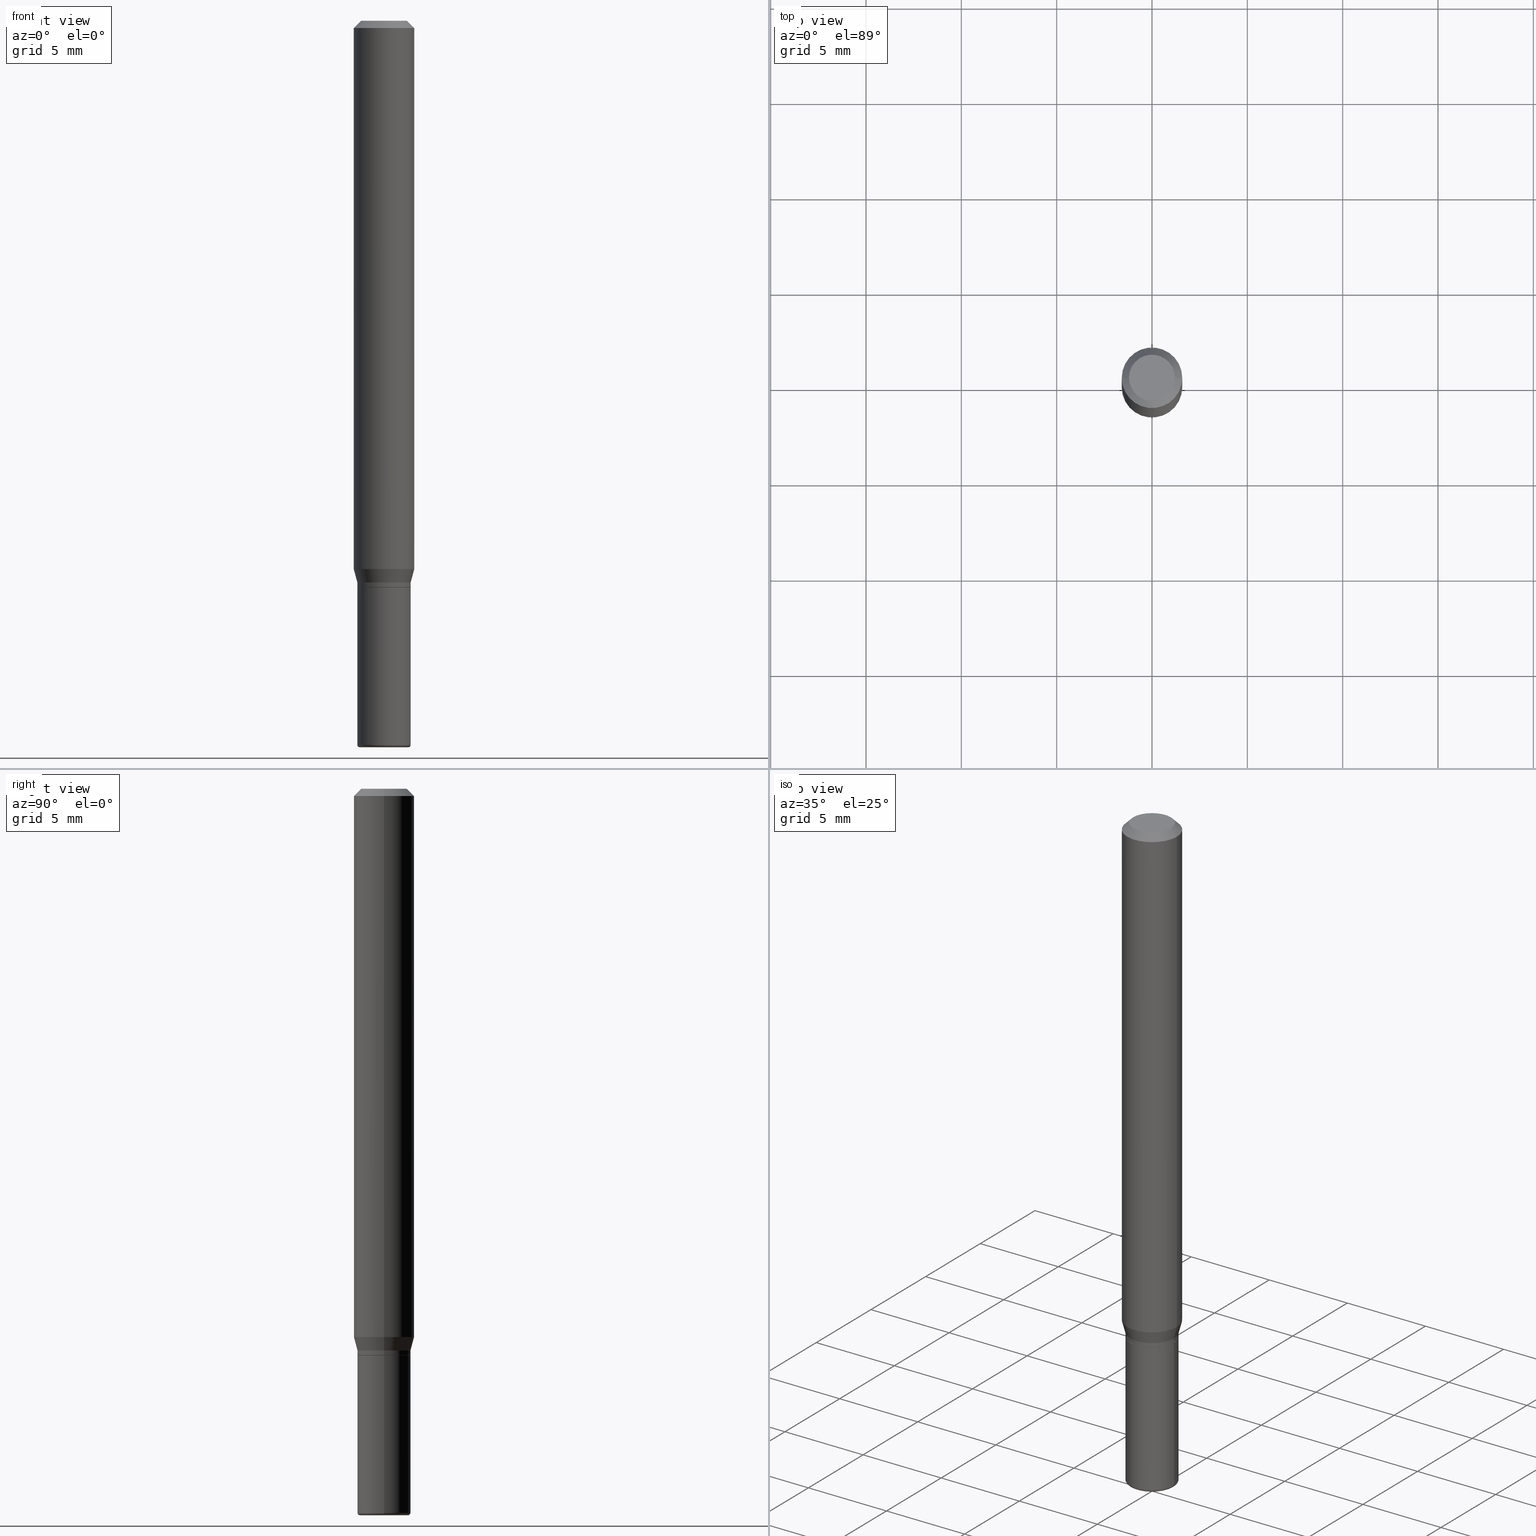
[diagram: canonical four-view strip — front | top / right | iso, engineering-drawing reading convention]
A machine part, canonical four-view strip (front | top / right | iso — engineering-drawing reading convention). The complete STEP part file that produces these views, byte-faithful:
ISO-10303-21;
HEADER;
FILE_DESCRIPTION (( 'STEP AP203' ),
    '1' );
FILE_NAME ('09097.STEP',
    '2024-02-29T22:05:54',
    ( '' ),
    ( '' ),
    'SwSTEP 2.0',
    'SolidWorks 2023',
    '' );
FILE_SCHEMA (( 'CONFIG_CONTROL_DESIGN' ));
ENDSEC;

DATA;
#1 = CONICAL_SURFACE ( 'NONE', #478, 0.05450000000000009698, 0.7853981633972775267 ) ;
#2 = VERTEX_POINT ( 'NONE', #15 ) ;
#3 = CARTESIAN_POINT ( 'NONE',  ( -0.05500000000000009742, 3.907985046680557945E-16, -2.705414299640202916E-30 ) ) ;
#4 =( CONVERSION_BASED_UNIT ( 'INCH', #299 ) LENGTH_UNIT ( ) NAMED_UNIT ( #26 ) );
#5 = ORIENTED_EDGE ( 'NONE', *, *, #184, .F. ) ;
#6 = CALENDAR_DATE ( 2024, 29, 2 ) ;
#7 = ORIENTED_EDGE ( 'NONE', *, *, #58, .T. ) ;
#8 = DIRECTION ( 'NONE',  ( -2.445468806185136597E-29, 3.491481338843145583E-15, 1.000000000000000000 ) ) ;
#9 = PERSON_AND_ORGANIZATION_ROLE ( 'design_owner' ) ;
#10 = ORIENTED_EDGE ( 'NONE', *, *, #86, .T. ) ;
#11 =( GEOMETRIC_REPRESENTATION_CONTEXT ( 3 ) GLOBAL_UNCERTAINTY_ASSIGNED_CONTEXT ( ( #160 ) ) GLOBAL_UNIT_ASSIGNED_CONTEXT ( ( #4, #457, #89 ) ) REPRESENTATION_CONTEXT ( 'NONE', 'WORKASPACE' ) );
#12 = ORIENTED_EDGE ( 'NONE', *, *, #364, .T. ) ;
#13 = EDGE_CURVE ( 'NONE', #53, #506, #134, .T. ) ;
#14 = PERSON_AND_ORGANIZATION ( #393, #59 ) ;
#15 = CARTESIAN_POINT ( 'NONE',  ( -0.05500000000000006967, -3.583810549235586733E-15, -1.160000000000000364 ) ) ;
#16 = EDGE_LOOP ( 'NONE', ( #214, #193, #60, #217 ) ) ;
#17 = MANIFOLD_SOLID_BREP ( 'Body-Move/Copy2[1]', #155 ) ;
#18 = AXIS2_PLACEMENT_3D ( 'NONE', #512, #472, #76 ) ;
#19 = AXIS2_PLACEMENT_3D ( 'NONE', #504, #154, #115 ) ;
#20 = ADVANCED_FACE ( 'NONE', ( #424 ), #142, .F. ) ;
#21 = ORIENTED_EDGE ( 'NONE', *, *, #505, .T. ) ;
#22 = ORIENTED_EDGE ( 'NONE', *, *, #178, .T. ) ;
#23 = SHAPE_DEFINITION_REPRESENTATION ( #240, #25 ) ;
#24 = ORIENTED_EDGE ( 'NONE', *, *, #177, .T. ) ;
#25 = ADVANCED_BREP_SHAPE_REPRESENTATION ( '09097', ( #17, #347, #195 ), #11 ) ;
#26 = DIMENSIONAL_EXPONENTS ( 1.000000000000000000, 0.000000000000000000, 0.000000000000000000, 0.000000000000000000, 0.000000000000000000, 0.000000000000000000, 0.000000000000000000 ) ;
#27 = CARTESIAN_POINT ( 'NONE',  ( -0.06250000000000000000, 3.840629472727455270E-16, -0.01499999999999970281 ) ) ;
#28 = DIRECTION ( 'NONE',  ( -1.000000000000000000, 6.982962677686265922E-15, -4.876176775795935793E-29 ) ) ;
#29 = CONICAL_SURFACE ( 'NONE', #267, 0.06250000000000000000, 0.7853981633974488341 ) ;
#30 = AXIS2_PLACEMENT_3D ( 'NONE', #370, #206, #378 ) ;
#31 = ORIENTED_EDGE ( 'NONE', *, *, #135, .F. ) ;
#32 = ADVANCED_FACE ( 'NONE', ( #79 ), #29, .T. ) ;
#33 = CARTESIAN_POINT ( 'NONE',  ( 3.655975865246779122E-29, -5.219764601570503141E-15, -1.495000000000000107 ) ) ;
#34 = FACE_OUTER_BOUND ( 'NONE', #181, .T. ) ;
#35 = CARTESIAN_POINT ( 'NONE',  ( 3.316907271900976589E-16, 0.04750000000000000749, -2.925296391183627249E-17 ) ) ;
#36 = VERTEX_POINT ( 'NONE', #37 ) ;
#37 = CARTESIAN_POINT ( 'NONE',  ( 0.05500000000000018069, -5.603827548843249703E-15, -1.495000000000000107 ) ) ;
#38 = FACE_OUTER_BOUND ( 'NONE', #16, .T. ) ;
#39 = CIRCLE ( 'NONE', #149, 0.05500000000000009742 ) ;
#40 = ADVANCED_FACE ( 'NONE', ( #43 ), #271, .T. ) ;
#41 = AXIS2_PLACEMENT_3D ( 'NONE', #321, #474, #279 ) ;
#42 = DIRECTION ( 'NONE',  ( 1.000000000000000000, -6.982962677686270655E-15, 0.000000000000000000 ) ) ;
#43 = FACE_OUTER_BOUND ( 'NONE', #153, .T. ) ;
#44 = LINE ( 'NONE', #398, #186 ) ;
#45 = CARTESIAN_POINT ( 'NONE',  ( -0.04999999999999999584, -4.855458368643558124E-15, -1.500000000000000444 ) ) ;
#46 = CARTESIAN_POINT ( 'NONE',  ( 2.861198503236610065E-29, -4.085033166446480067E-15, -1.170000000000000151 ) ) ;
#47 = LINE ( 'NONE', #125, #413 ) ;
#48 = DIRECTION ( 'NONE',  ( -2.445468806185136597E-29, 3.491481338843145583E-15, 1.000000000000000000 ) ) ;
#49 = APPROVAL_ROLE ( '' ) ;
#50 = ORIENTED_EDGE ( 'NONE', *, *, #262, .T. ) ;
#51 = AXIS2_PLACEMENT_3D ( 'NONE', #80, #368, #322 ) ;
#52 = DIRECTION ( 'NONE',  ( 1.000000000000000000, -6.982962677686262766E-15, 0.000000000000000000 ) ) ;
#53 = VERTEX_POINT ( 'NONE', #188 ) ;
#54 = EDGE_CURVE ( 'NONE', #369, #265, #375, .T. ) ;
#55 = PERSON_AND_ORGANIZATION ( #393, #59 ) ;
#56 = CARTESIAN_POINT ( 'NONE',  ( 3.655975865246779122E-29, -5.219764601570503141E-15, -1.495000000000000107 ) ) ;
#57 = EDGE_LOOP ( 'NONE', ( #24, #12, #274, #216 ) ) ;
#58 = EDGE_CURVE ( 'NONE', #2, #345, #327, .T. ) ;
#59 = ORGANIZATION ( 'UNSPECIFIED', 'UNSPECIFIED', '' ) ;
#60 = ORIENTED_EDGE ( 'NONE', *, *, #259, .F. ) ;
#61 = CARTESIAN_POINT ( 'NONE',  ( 0.05500000000000007661, -3.840629472727452311E-16, 2.681897226687768680E-30 ) ) ;
#62 = PERSON_AND_ORGANIZATION_ROLE ( 'creator' ) ;
#63 = CALENDAR_DATE ( 2024, 29, 2 ) ;
#64 = EDGE_CURVE ( 'NONE', #414, #446, #39, .T. ) ;
#65 = ORIENTED_EDGE ( 'NONE', *, *, #13, .T. ) ;
#66 = VECTOR ( 'NONE', #288, 39.37007874015748143 ) ;
#67 = AXIS2_PLACEMENT_3D ( 'NONE', #328, #346, #202 ) ;
#68 = DIRECTION ( 'NONE',  ( 1.000000000000000000, -6.982962677686262766E-15, 0.000000000000000000 ) ) ;
#69 = COORDINATED_UNIVERSAL_TIME_OFFSET ( 5, 0, .BEHIND. ) ;
#70 = CARTESIAN_POINT ( 'NONE',  ( -0.05450000000000009698, -3.695138148283113527E-15, -1.170000000000000151 ) ) ;
#71 = PLANE ( 'NONE',  #295 ) ;
#72 = APPROVAL ( #210, 'UNSPECIFIED' ) ;
#73 = CARTESIAN_POINT ( 'NONE',  ( 3.668203209277632395E-31, -5.237222008264614861E-17, -0.01499999999999970281 ) ) ;
#74 = ORIENTED_EDGE ( 'NONE', *, *, #54, .F. ) ;
#75 = DIRECTION ( 'NONE',  ( 1.000000000000000000, -6.982962677686262766E-15, 0.000000000000000000 ) ) ;
#76 = DIRECTION ( 'NONE',  ( 1.000000000000000000, -6.982962677686266711E-15, 4.852736867747365086E-29 ) ) ;
#77 = FACE_OUTER_BOUND ( 'NONE', #175, .T. ) ;
#78 = APPROVAL ( #162, 'UNSPECIFIED' ) ;
#79 = FACE_OUTER_BOUND ( 'NONE', #473, .T. ) ;
#80 = CARTESIAN_POINT ( 'NONE',  ( 0.000000000000000000, 0.000000000000000000, 0.000000000000000000 ) ) ;
#81 = DIRECTION ( 'NONE',  ( -2.445468806185136877E-29, 3.491481338843145188E-15, 1.000000000000000000 ) ) ;
#82 = AXIS2_PLACEMENT_3D ( 'NONE', #254, #488, #459 ) ;
#83 = CC_DESIGN_APPROVAL ( #78, ( #351 ) ) ;
#84 = DIRECTION ( 'NONE',  ( -2.445468806185136877E-29, 3.491481338843145188E-15, 1.000000000000000000 ) ) ;
#85 = LINE ( 'NONE', #3, #469 ) ;
#86 = EDGE_CURVE ( 'NONE', #119, #237, #91, .T. ) ;
#87 = ORIENTED_EDGE ( 'NONE', *, *, #266, .F. ) ;
#88 = EDGE_CURVE ( 'NONE', #369, #237, #228, .T. ) ;
#89 =( NAMED_UNIT ( * ) SI_UNIT ( $, .STERADIAN. ) SOLID_ANGLE_UNIT ( ) );
#90 = ORIENTED_EDGE ( 'NONE', *, *, #232, .T. ) ;
#91 = CIRCLE ( 'NONE', #339, 0.06250000000000000000 ) ;
#92 = LOCAL_TIME ( 17, 5, 54.00000000000000000, #344 ) ;
#93 = CARTESIAN_POINT ( 'NONE',  ( 0.05450000000000009698, -4.465604632380382834E-15, -1.170000000000000151 ) ) ;
#94 = FACE_OUTER_BOUND ( 'NONE', #394, .T. ) ;
#95 = APPLICATION_PROTOCOL_DEFINITION ( 'international standard', 'config_control_design', 1994, #261 ) ;
#96 = LOCAL_TIME ( 17, 5, 54.00000000000000000, #391 ) ;
#97 = VERTEX_POINT ( 'NONE', #93 ) ;
#98 = PERSON_AND_ORGANIZATION ( #393, #59 ) ;
#99 = EDGE_LOOP ( 'NONE', ( #137, #218, #31, #145 ) ) ;
#100 = ORIENTED_EDGE ( 'NONE', *, *, #358, .F. ) ;
#101 = CARTESIAN_POINT ( 'NONE',  ( -0.05500000000000018069, -4.261600379340434577E-15, -1.495000000000000107 ) ) ;
#102 = CC_DESIGN_DATE_AND_TIME_ASSIGNMENT ( #350, #428, ( #285 ) ) ;
#103 = FACE_OUTER_BOUND ( 'NONE', #349, .T. ) ;
#104 = DIRECTION ( 'NONE',  ( -2.445468806185136597E-29, 3.491481338843145583E-15, 1.000000000000000000 ) ) ;
#105 = CONICAL_SURFACE ( 'NONE', #205, 0.05450000000000009698, 0.7853981633972775267 ) ;
#106 = ORIENTED_EDGE ( 'NONE', *, *, #13, .F. ) ;
#107 = AXIS2_PLACEMENT_3D ( 'NONE', #485, #292, #454 ) ;
#108 = AXIS2_PLACEMENT_3D ( 'NONE', #332, #166, #482 ) ;
#109 = CARTESIAN_POINT ( 'NONE',  ( 2.859975768833516703E-29, -4.083287425777058564E-15, -1.169499999999999984 ) ) ;
#110 = CC_DESIGN_PERSON_AND_ORGANIZATION_ASSIGNMENT ( #489, #62, ( #340 ) ) ;
#111 = ORIENTED_EDGE ( 'NONE', *, *, #462, .T. ) ;
#112 = DIRECTION ( 'NONE',  ( -2.445468806185136597E-29, 3.491481338843145583E-15, 1.000000000000000000 ) ) ;
#113 = DIRECTION ( 'NONE',  ( -0.7071067811864267805, 7.493145998869918709E-15, 0.7071067811866682540 ) ) ;
#114 = ORIENTED_EDGE ( 'NONE', *, *, #132, .T. ) ;
#115 = DIRECTION ( 'NONE',  ( 1.000000000000000000, -6.982962677686267499E-15, 4.876176775795936353E-29 ) ) ;
#116 = AXIS2_PLACEMENT_3D ( 'NONE', #304, #499, #144 ) ;
#117 = AXIS2_PLACEMENT_3D ( 'NONE', #367, #513, #75 ) ;
#118 = EDGE_CURVE ( 'NONE', #313, #201, #450, .T. ) ;
#119 = VERTEX_POINT ( 'NONE', #245 ) ;
#120 = DIRECTION ( 'NONE',  ( -2.445468806185136597E-29, 3.491481338843145583E-15, 1.000000000000000000 ) ) ;
#121 = CARTESIAN_POINT ( 'NONE',  ( 2.836743815174759641E-29, -4.050118353058050785E-15, -1.160000000000000364 ) ) ;
#122 = EDGE_LOOP ( 'NONE', ( #466, #203, #509, #470 ) ) ;
#123 = CARTESIAN_POINT ( 'NONE',  ( -0.05500000000000009742, -3.692488921109003115E-15, -1.169499999999999984 ) ) ;
#124 = CARTESIAN_POINT ( 'NONE',  ( 0.05500000000000009742, -3.840629472727453298E-16, 2.681897226687769380E-30 ) ) ;
#125 = CARTESIAN_POINT ( 'NONE',  ( 0.05450000000000009698, -4.465604632380382834E-15, -1.170000000000000151 ) ) ;
#126 = LOCAL_TIME ( 17, 5, 54.00000000000000000, #69 ) ;
#127 = LINE ( 'NONE', #491, #284 ) ;
#128 = CC_DESIGN_APPROVAL ( #343, ( #285 ) ) ;
#129 = DIRECTION ( 'NONE',  ( 1.000000000000000000, -6.982962677686276177E-15, 0.000000000000000000 ) ) ;
#130 = DATE_AND_TIME ( #374, #486 ) ;
#131 = ADVANCED_FACE ( 'NONE', ( #331 ), #380, .T. ) ;
#132 = EDGE_CURVE ( 'NONE', #53, #237, #196, .T. ) ;
#133 = PLANE ( 'NONE',  #396 ) ;
#134 = CIRCLE ( 'NONE', #395, 0.06250000000000000000 ) ;
#135 = EDGE_CURVE ( 'NONE', #345, #2, #399, .T. ) ;
#136 = APPLICATION_PROTOCOL_DEFINITION ( 'international standard', 'config_control_design', 1994, #236 ) ;
#137 = ORIENTED_EDGE ( 'NONE', *, *, #330, .T. ) ;
#138 = DATE_AND_TIME ( #213, #92 ) ;
#139 = DIRECTION ( 'NONE',  ( 1.000000000000000000, -6.982962677686274599E-15, 0.000000000000000000 ) ) ;
#140 = EDGE_CURVE ( 'NONE', #345, #506, #441, .T. ) ;
#141 = CIRCLE ( 'NONE', #185, 0.04999999999999999584 ) ;
#142 = PLANE ( 'NONE',  #215 ) ;
#143 = AXIS2_PLACEMENT_3D ( 'NONE', #360, #316, #436 ) ;
#144 = DIRECTION ( 'NONE',  ( 1.000000000000000000, -6.982962677686265922E-15, 4.876176775795935793E-29 ) ) ;
#145 = ORIENTED_EDGE ( 'NONE', *, *, #199, .F. ) ;
#146 = DIRECTION ( 'NONE',  ( -2.445468806185136597E-29, 3.491481338843145583E-15, 1.000000000000000000 ) ) ;
#147 = APPROVAL_STATUS ( 'not_yet_approved' ) ;
#148 = PERSON_AND_ORGANIZATION ( #393, #59 ) ;
#149 = AXIS2_PLACEMENT_3D ( 'NONE', #109, #112, #269 ) ;
#150 = CARTESIAN_POINT ( 'NONE',  ( -0.05500000000000000028, -4.261600379340436155E-15, -1.170000000000000151 ) ) ;
#151 = DIRECTION ( 'NONE',  ( -1.000000000000000000, 7.105427357601061812E-15, 0.000000000000000000 ) ) ;
#152 = EDGE_CURVE ( 'NONE', #484, #36, #294, .T. ) ;
#153 = EDGE_LOOP ( 'NONE', ( #385, #487, #10, #171 ) ) ;
#154 = DIRECTION ( 'NONE',  ( -2.445468806185136597E-29, 3.491481338843145583E-15, 1.000000000000000000 ) ) ;
#155 = CLOSED_SHELL ( 'NONE', ( #334, #444, #20, #302, #476, #226 ) ) ;
#156 = ORIENTED_EDGE ( 'NONE', *, *, #88, .T. ) ;
#157 = CARTESIAN_POINT ( 'NONE',  ( -0.05500000000000007661, 3.907985046680556465E-16, -2.705414299640202216E-30 ) ) ;
#158 = AXIS2_PLACEMENT_3D ( 'NONE', #33, #229, #189 ) ;
#159 = CYLINDRICAL_SURFACE ( 'NONE', #41, 0.05500000000000009742 ) ;
#160 = UNCERTAINTY_MEASURE_WITH_UNIT (LENGTH_MEASURE( 1.000000000000000082E-05 ), #4, 'distance_accuracy_value', 'NONE');
#161 = DIRECTION ( 'NONE',  ( 1.000000000000000000, -6.982962677686275388E-15, 0.000000000000000000 ) ) ;
#162 = APPROVAL_STATUS ( 'not_yet_approved' ) ;
#163 = CC_DESIGN_PERSON_AND_ORGANIZATION_ASSIGNMENT ( #55, #247, ( #351 ) ) ;
#164 = FACE_OUTER_BOUND ( 'NONE', #390, .T. ) ;
#165 = ORIENTED_EDGE ( 'NONE', *, *, #357, .F. ) ;
#166 = DIRECTION ( 'NONE',  ( -2.445468806185136597E-29, 3.491481338843145583E-15, 1.000000000000000000 ) ) ;
#167 = PERSON_AND_ORGANIZATION ( #393, #59 ) ;
#168 = FACE_OUTER_BOUND ( 'NONE', #122, .T. ) ;
#169 = EDGE_CURVE ( 'NONE', #265, #119, #127, .T. ) ;
#170 = APPROVAL_DATE_TIME ( #130, #78 ) ;
#171 = ORIENTED_EDGE ( 'NONE', *, *, #88, .F. ) ;
#172 = DIRECTION ( 'NONE',  ( -2.445468806185136597E-29, 3.491481338843145583E-15, 1.000000000000000000 ) ) ;
#173 = CC_DESIGN_APPROVAL ( #72, ( #340 ) ) ;
#174 = APPROVAL_DATE_TIME ( #417, #72 ) ;
#175 = EDGE_LOOP ( 'NONE', ( #326, #301, #87, #312 ) ) ;
#176 = DIRECTION ( 'NONE',  ( -2.445468806185136597E-29, 3.491481338843145583E-15, 1.000000000000000000 ) ) ;
#177 = EDGE_CURVE ( 'NONE', #97, #256, #460, .T. ) ;
#178 = EDGE_CURVE ( 'NONE', #237, #119, #386, .T. ) ;
#179 = APPROVAL_DATE_TIME ( #356, #343 ) ;
#180 = CIRCLE ( 'NONE', #117, 0.05500000000000000028 ) ;
#181 = EDGE_LOOP ( 'NONE', ( #366, #50 ) ) ;
#182 = CARTESIAN_POINT ( 'NONE',  ( 0.05500000000000006967, -4.434181300330795770E-15, -1.160000000000000364 ) ) ;
#183 = CARTESIAN_POINT ( 'NONE',  ( 2.768294211427202327E-29, -3.952390459931242324E-15, -1.132009618943234264 ) ) ;
#184 = EDGE_CURVE ( 'NONE', #201, #313, #141, .T. ) ;
#185 = AXIS2_PLACEMENT_3D ( 'NONE', #348, #172, #403 ) ;
#186 = VECTOR ( 'NONE', #430, 39.37007874015748143 ) ;
#187 = FACE_OUTER_BOUND ( 'NONE', #307, .T. ) ;
#188 = CARTESIAN_POINT ( 'NONE',  ( -0.06250000000000000000, -3.508301250081179708E-15, -1.132009618943234264 ) ) ;
#189 = DIRECTION ( 'NONE',  ( 1.000000000000000000, -6.982962677686274599E-15, 0.000000000000000000 ) ) ;
#190 = DIRECTION ( 'NONE',  ( -2.445468806185136597E-29, 3.491481338843145583E-15, 1.000000000000000000 ) ) ;
#191 = DIRECTION ( 'NONE',  ( 2.438088387897960049E-29, -3.491481338843145188E-15, -1.000000000000000000 ) ) ;
#192 = CARTESIAN_POINT ( 'NONE',  ( 3.668203209277632395E-31, -5.237222008264614861E-17, -0.01499999999999970281 ) ) ;
#193 = ORIENTED_EDGE ( 'NONE', *, *, #357, .T. ) ;
#194 = CARTESIAN_POINT ( 'NONE',  ( -0.04750000000000000749, 3.578768372314221353E-16, 2.731847993664239060E-16 ) ) ;
#195 = AXIS2_PLACEMENT_3D ( 'NONE', #449, #407, #420 ) ;
#196 = LINE ( 'NONE', #475, #223 ) ;
#197 = EDGE_LOOP ( 'NONE', ( #381, #490, #412, #447 ) ) ;
#198 = DIRECTION ( 'NONE',  ( 0.2588190451025209060, 1.565188264969625123E-15, 0.9659258262890682012 ) ) ;
#199 = EDGE_CURVE ( 'NONE', #446, #345, #416, .T. ) ;
#200 = DIRECTION ( 'NONE',  ( -2.445468806185136597E-29, 3.491481338843145583E-15, 1.000000000000000000 ) ) ;
#201 = VERTEX_POINT ( 'NONE', #45 ) ;
#202 = DIRECTION ( 'NONE',  ( 1.000000000000000000, -6.982962677686280121E-15, 0.000000000000000000 ) ) ;
#203 = ORIENTED_EDGE ( 'NONE', *, *, #152, .T. ) ;
#204 = AXIS2_PLACEMENT_3D ( 'NONE', #437, #382, #42 ) ;
#205 = AXIS2_PLACEMENT_3D ( 'NONE', #445, #244, #129 ) ;
#206 = DIRECTION ( 'NONE',  ( -2.445468806185136597E-29, 3.491481338843145583E-15, 1.000000000000000000 ) ) ;
#207 = VERTEX_POINT ( 'NONE', #276 ) ;
#208 = CARTESIAN_POINT ( 'NONE',  ( 0.05500000000000009742, -4.467350373049804337E-15, -1.169499999999999984 ) ) ;
#209 = ADVANCED_FACE ( 'NONE', ( #212 ), #431, .T. ) ;
#210 = APPROVAL_STATUS ( 'not_yet_approved' ) ;
#211 = ORIENTED_EDGE ( 'NONE', *, *, #232, .F. ) ;
#212 = FACE_OUTER_BOUND ( 'NONE', #197, .T. ) ;
#213 = CALENDAR_DATE ( 2024, 29, 2 ) ;
#214 = ORIENTED_EDGE ( 'NONE', *, *, #118, .T. ) ;
#215 = AXIS2_PLACEMENT_3D ( 'NONE', #463, #191, #238 ) ;
#216 = ORIENTED_EDGE ( 'NONE', *, *, #505, .F. ) ;
#217 = ORIENTED_EDGE ( 'NONE', *, *, #462, .F. ) ;
#218 = ORIENTED_EDGE ( 'NONE', *, *, #392, .T. ) ;
#219 = EDGE_CURVE ( 'NONE', #36, #207, #439, .T. ) ;
#220 = CYLINDRICAL_SURFACE ( 'NONE', #51, 0.06250000000000000000 ) ;
#221 = CALENDAR_DATE ( 2024, 29, 2 ) ;
#222 = EDGE_CURVE ( 'NONE', #506, #53, #352, .T. ) ;
#223 = VECTOR ( 'NONE', #249, 39.37007874015748143 ) ;
#224 = CIRCLE ( 'NONE', #67, 0.005000000000000177046 ) ;
#225 = CC_DESIGN_SECURITY_CLASSIFICATION ( #285, ( #340 ) ) ;
#226 = ADVANCED_FACE ( 'NONE', ( #103 ), #419, .F. ) ;
#227 = PERSON_AND_ORGANIZATION ( #393, #59 ) ;
#228 = LINE ( 'NONE', #27, #66 ) ;
#229 = DIRECTION ( 'NONE',  ( -2.445468806185136597E-29, 3.491481338843145583E-15, 1.000000000000000000 ) ) ;
#230 = ORIENTED_EDGE ( 'NONE', *, *, #86, .F. ) ;
#231 = DIRECTION ( 'NONE',  ( 2.438088387897960049E-29, -3.491481338843145188E-15, -1.000000000000000000 ) ) ;
#232 = EDGE_CURVE ( 'NONE', #506, #119, #425, .T. ) ;
#233 = AXIS2_PLACEMENT_3D ( 'NONE', #243, #341, #456 ) ;
#234 = ORIENTED_EDGE ( 'NONE', *, *, #64, .T. ) ;
#235 = FACE_OUTER_BOUND ( 'NONE', #99, .T. ) ;
#236 = APPLICATION_CONTEXT ( 'configuration controlled 3d designs of mechanical parts and assemblies' ) ;
#237 = VERTEX_POINT ( 'NONE', #282 ) ;
#238 = DIRECTION ( 'NONE',  ( -1.000000000000000000, 6.982962677686265922E-15, -4.876176775795935793E-29 ) ) ;
#239 = DIRECTION ( 'NONE',  ( 1.000000000000000000, -6.982962677686270655E-15, 0.000000000000000000 ) ) ;
#240 = PRODUCT_DEFINITION_SHAPE ( 'NONE', 'NONE',  #351 ) ;
#241 = VECTOR ( 'NONE', #198, 39.37007874015748143 ) ;
#242 = CIRCLE ( 'NONE', #317, 0.05450000000000009698 ) ;
#243 = CARTESIAN_POINT ( 'NONE',  ( 2.768294211427202327E-29, -3.952390459931242324E-15, -1.132009618943234264 ) ) ;
#244 = DIRECTION ( 'NONE',  ( -2.445468806185136597E-29, 3.491481338843145583E-15, 1.000000000000000000 ) ) ;
#245 = CARTESIAN_POINT ( 'NONE',  ( 0.06250000000000000000, -4.888073874380378612E-16, -0.01499999999999970281 ) ) ;
#246 = DIRECTION ( 'NONE',  ( 1.000000000000000000, -6.982962677686265922E-15, 4.876176775795935793E-29 ) ) ;
#247 = PERSON_AND_ORGANIZATION_ROLE ( 'creator' ) ;
#248 = VERTEX_POINT ( 'NONE', #150 ) ;
#249 = DIRECTION ( 'NONE',  ( -2.445468806185136877E-29, 3.491481338843145188E-15, 1.000000000000000000 ) ) ;
#250 = CARTESIAN_POINT ( 'NONE',  ( 2.861198503236610065E-29, -4.085033166446480067E-15, -1.170000000000000151 ) ) ;
#251 = ORIENTED_EDGE ( 'NONE', *, *, #64, .F. ) ;
#252 = TOROIDAL_SURFACE ( 'NONE', #377, 0.05000000000000000278, 0.005000000000000177046 ) ;
#253 = MECHANICAL_CONTEXT ( 'NONE', #236, 'mechanical' ) ;
#254 = CARTESIAN_POINT ( 'NONE',  ( 2.861198503236610065E-29, -4.085033166446480067E-15, -1.170000000000000151 ) ) ;
#255 = COORDINATED_UNIVERSAL_TIME_OFFSET ( 5, 0, .BEHIND. ) ;
#256 = VERTEX_POINT ( 'NONE', #70 ) ;
#257 = DIRECTION ( 'NONE',  ( -2.445468806185136877E-29, 3.491481338843145188E-15, 1.000000000000000000 ) ) ;
#258 = CLOSED_SHELL ( 'NONE', ( #433, #361, #40, #502, #209, #387, #270, #32, #384, #319, #291, #131 ) ) ;
#259 = EDGE_CURVE ( 'NONE', #36, #484, #389, .T. ) ;
#260 = FACE_OUTER_BOUND ( 'NONE', #434, .T. ) ;
#261 = APPLICATION_CONTEXT ( 'configuration controlled 3d designs of mechanical parts and assemblies' ) ;
#262 = EDGE_CURVE ( 'NONE', #265, #369, #329, .T. ) ;
#263 = ORIENTED_EDGE ( 'NONE', *, *, #140, .T. ) ;
#264 = APPROVAL_ROLE ( '' ) ;
#265 = VERTEX_POINT ( 'NONE', #448 ) ;
#266 = EDGE_CURVE ( 'NONE', #207, #248, #511, .T. ) ;
#267 = AXIS2_PLACEMENT_3D ( 'NONE', #286, #465, #401 ) ;
#268 = TOROIDAL_SURFACE ( 'NONE', #452, 0.05000000000000000278, 0.005000000000000177046 ) ;
#269 = DIRECTION ( 'NONE',  ( 1.000000000000000000, -6.982962677686258033E-15, 0.000000000000000000 ) ) ;
#270 = ADVANCED_FACE ( 'NONE', ( #293 ), #324, .T. ) ;
#271 = CONICAL_SURFACE ( 'NONE', #427, 0.06250000000000000000, 0.7853981633974488341 ) ;
#272 = DIRECTION ( 'NONE',  ( -1.000000000000000000, 6.982962677686266711E-15, 0.000000000000000000 ) ) ;
#273 = AXIS2_PLACEMENT_3D ( 'NONE', #516, #402, #151 ) ;
#274 = ORIENTED_EDGE ( 'NONE', *, *, #330, .F. ) ;
#275 = DIRECTION ( 'NONE',  ( 1.000000000000000000, -6.982962677686270655E-15, 0.000000000000000000 ) ) ;
#276 = CARTESIAN_POINT ( 'NONE',  ( 0.05500000000000000028, -4.469096113719225052E-15, -1.170000000000000151 ) ) ;
#277 = DIRECTION ( 'NONE',  ( -2.445468806185136597E-29, 3.491481338843145583E-15, 1.000000000000000000 ) ) ;
#278 = EDGE_CURVE ( 'NONE', #484, #248, #85, .T. ) ;
#279 = DIRECTION ( 'NONE',  ( 1.000000000000000000, -6.982962677686266711E-15, 4.876176775795935793E-29 ) ) ;
#280 = DIRECTION ( 'NONE',  ( 1.000000000000000000, -6.982962677686266711E-15, 0.000000000000000000 ) ) ;
#281 = DIRECTION ( 'NONE',  ( 1.000000000000000000, -6.982962677686270655E-15, 0.000000000000000000 ) ) ;
#282 = CARTESIAN_POINT ( 'NONE',  ( -0.06250000000000000000, -1.558292130156881494E-15, -0.01499999999999970281 ) ) ;
#283 = DIRECTION ( 'NONE',  ( 0.7071067811864267805, -2.468850131080992517E-15, 0.7071067811866682540 ) ) ;
#284 = VECTOR ( 'NONE', #287, 39.37007874015748143 ) ;
#285 = SECURITY_CLASSIFICATION ( '', '', #355 ) ;
#286 = CARTESIAN_POINT ( 'NONE',  ( 3.668203209277632395E-31, -5.237222008264614861E-17, -0.01499999999999970281 ) ) ;
#287 = DIRECTION ( 'NONE',  ( 0.7071067811865479058, -7.319954787623257623E-15, -0.7071067811865471286 ) ) ;
#288 = DIRECTION ( 'NONE',  ( -0.7071067811865479058, 2.468850131082261005E-15, -0.7071067811865471286 ) ) ;
#289 = DIRECTION ( 'NONE',  ( -2.445468806185136597E-29, 3.491481338843145583E-15, 1.000000000000000000 ) ) ;
#290 = ORIENTED_EDGE ( 'NONE', *, *, #58, .F. ) ;
#291 = ADVANCED_FACE ( 'NONE', ( #479 ), #105, .T. ) ;
#292 = DIRECTION ( 'NONE',  ( -2.445468806185136597E-29, 3.491481338843145583E-15, 1.000000000000000000 ) ) ;
#293 = FACE_OUTER_BOUND ( 'NONE', #507, .T. ) ;
#294 = CIRCLE ( 'NONE', #518, 0.05500000000000018069 ) ;
#295 = AXIS2_PLACEMENT_3D ( 'NONE', #35, #231, #28 ) ;
#296 = DATE_TIME_ROLE ( 'creation_date' ) ;
#297 = EDGE_LOOP ( 'NONE', ( #372, #234, #455, #290 ) ) ;
#298 = CARTESIAN_POINT ( 'NONE',  ( 3.668203209277632395E-31, -5.237222008264614861E-17, -0.01499999999999970281 ) ) ;
#299 = LENGTH_MEASURE_WITH_UNIT ( LENGTH_MEASURE( 0.02539999999999999897 ), #333 );
#300 = ORIENTED_EDGE ( 'NONE', *, *, #177, .F. ) ;
#301 = ORIENTED_EDGE ( 'NONE', *, *, #278, .T. ) ;
#302 = ADVANCED_FACE ( 'NONE', ( #168 ), #404, .T. ) ;
#303 = DIRECTION ( 'NONE',  ( 1.000000000000000000, -6.982962677686274599E-15, 4.883557194083115704E-29 ) ) ;
#304 = CARTESIAN_POINT ( 'NONE',  ( 3.582686580359767159E-29, -5.359686688179454114E-15, -1.500000000000000444 ) ) ;
#305 = AXIS2_PLACEMENT_3D ( 'NONE', #298, #104, #280 ) ;
#306 = VECTOR ( 'NONE', #113, 39.37007874015748143 ) ;
#307 = EDGE_LOOP ( 'NONE', ( #100, #7, #263, #106 ) ) ;
#308 = APPROVAL_PERSON_ORGANIZATION ( #98, #72, #49 ) ;
#309 = DIRECTION ( 'NONE',  ( -2.445468806185136597E-29, 3.491481338843145583E-15, 1.000000000000000000 ) ) ;
#310 = CARTESIAN_POINT ( 'NONE',  ( 2.836743815174759641E-29, -4.050118353058050785E-15, -1.160000000000000364 ) ) ;
#311 = PRODUCT_RELATED_PRODUCT_CATEGORY ( 'detail', '', ( #320 ) ) ;
#312 = ORIENTED_EDGE ( 'NONE', *, *, #219, .F. ) ;
#313 = VERTEX_POINT ( 'NONE', #451 ) ;
#314 = DIRECTION ( 'NONE',  ( 1.000000000000000000, -6.982962677686274599E-15, 4.883557194083115704E-29 ) ) ;
#315 = AXIS2_PLACEMENT_3D ( 'NONE', #406, #48, #373 ) ;
#316 = DIRECTION ( 'NONE',  ( -2.445468806185136597E-29, 3.491481338843145583E-15, 1.000000000000000000 ) ) ;
#317 = AXIS2_PLACEMENT_3D ( 'NONE', #371, #309, #480 ) ;
#318 = ORIENTED_EDGE ( 'NONE', *, *, #222, .T. ) ;
#319 = ADVANCED_FACE ( 'NONE', ( #94 ), #133, .F. ) ;
#320 = PRODUCT ( '09097', '09097', '', ( #253 ) ) ;
#321 = CARTESIAN_POINT ( 'NONE',  ( 0.000000000000000000, 0.000000000000000000, 0.000000000000000000 ) ) ;
#322 = DIRECTION ( 'NONE',  ( 1.000000000000000000, -6.982962677686266711E-15, 4.876176775795935793E-29 ) ) ;
#323 = CARTESIAN_POINT ( 'NONE',  ( 2.861198503236610065E-29, -4.085033166446480067E-15, -1.170000000000000151 ) ) ;
#324 = CYLINDRICAL_SURFACE ( 'NONE', #30, 0.06250000000000000000 ) ;
#325 = APPROVAL_ROLE ( '' ) ;
#326 = ORIENTED_EDGE ( 'NONE', *, *, #259, .T. ) ;
#327 = CIRCLE ( 'NONE', #365, 0.05500000000000006967 ) ;
#328 = CARTESIAN_POINT ( 'NONE',  ( 0.05000000000000000278, -5.568912735454817265E-15, -1.495000000000000107 ) ) ;
#329 = CIRCLE ( 'NONE', #143, 0.04750000000000000749 ) ;
#330 = EDGE_CURVE ( 'NONE', #446, #414, #422, .T. ) ;
#331 = FACE_OUTER_BOUND ( 'NONE', #297, .T. ) ;
#332 = CARTESIAN_POINT ( 'NONE',  ( 0.000000000000000000, 0.000000000000000000, 0.000000000000000000 ) ) ;
#333 =( LENGTH_UNIT ( ) NAMED_UNIT ( * ) SI_UNIT ( $, .METRE. ) );
#334 = ADVANCED_FACE ( 'NONE', ( #38 ), #268, .T. ) ;
#335 = CARTESIAN_POINT ( 'NONE',  ( 3.668203209277706016E-29, -5.237222008264719754E-15, -1.500000000000000444 ) ) ;
#336 = PERSON_AND_ORGANIZATION ( #393, #59 ) ;
#337 = ORIENTED_EDGE ( 'NONE', *, *, #132, .F. ) ;
#338 = CARTESIAN_POINT ( 'NONE',  ( 0.06250000000000000000, -4.364351673553916694E-16, 3.047610484872459871E-30 ) ) ;
#339 = AXIS2_PLACEMENT_3D ( 'NONE', #73, #359, #362 ) ;
#340 = PRODUCT_DEFINITION_FORMATION_WITH_SPECIFIED_SOURCE ( 'ANY', '', #320, .NOT_KNOWN. ) ;
#341 = DIRECTION ( 'NONE',  ( -2.445468806185136597E-29, 3.491481338843145583E-15, 1.000000000000000000 ) ) ;
#342 = APPROVAL_PERSON_ORGANIZATION ( #148, #343, #264 ) ;
#343 = APPROVAL ( #147, 'UNSPECIFIED' ) ;
#344 = COORDINATED_UNIVERSAL_TIME_OFFSET ( 5, 0, .BEHIND. ) ;
#345 = VERTEX_POINT ( 'NONE', #363 ) ;
#346 = DIRECTION ( 'NONE',  ( -6.982962677686266711E-15, -1.000000000000000000, 3.491481338843145583E-15 ) ) ;
#347 = MANIFOLD_SOLID_BREP ( 'Body-Move/Copy2[2]', #258 ) ;
#348 = CARTESIAN_POINT ( 'NONE',  ( 3.668203209277706016E-29, -5.237222008264719754E-15, -1.500000000000000444 ) ) ;
#349 = EDGE_LOOP ( 'NONE', ( #418, #5 ) ) ;
#350 = DATE_AND_TIME ( #221, #126 ) ;
#351 = PRODUCT_DEFINITION ( 'UNKNOWN', '', #340, #383 ) ;
#352 = CIRCLE ( 'NONE', #233, 0.06250000000000000000 ) ;
#353 = CIRCLE ( 'NONE', #273, 0.005000000000000177046 ) ;
#354 = ORIENTED_EDGE ( 'NONE', *, *, #169, .F. ) ;
#355 = SECURITY_CLASSIFICATION_LEVEL ( 'unclassified' ) ;
#356 = DATE_AND_TIME ( #63, #96 ) ;
#357 = EDGE_CURVE ( 'NONE', #201, #484, #353, .T. ) ;
#358 = EDGE_CURVE ( 'NONE', #2, #53, #44, .T. ) ;
#359 = DIRECTION ( 'NONE',  ( -2.445468806185136597E-29, 3.491481338843145583E-15, 1.000000000000000000 ) ) ;
#360 = CARTESIAN_POINT ( 'NONE',  ( -6.680649051745406845E-45, 9.538196290434862081E-31, 2.731847993664263218E-16 ) ) ;
#361 = ADVANCED_FACE ( 'NONE', ( #438 ), #1, .T. ) ;
#362 = DIRECTION ( 'NONE',  ( 1.000000000000000000, -6.982962677686266711E-15, 0.000000000000000000 ) ) ;
#363 = CARTESIAN_POINT ( 'NONE',  ( 0.05500000000000006967, -4.434181300330795770E-15, -1.160000000000000364 ) ) ;
#364 = EDGE_CURVE ( 'NONE', #256, #414, #477, .T. ) ;
#365 = AXIS2_PLACEMENT_3D ( 'NONE', #121, #277, #239 ) ;
#366 = ORIENTED_EDGE ( 'NONE', *, *, #54, .T. ) ;
#367 = CARTESIAN_POINT ( 'NONE',  ( 2.861198503236610065E-29, -4.085033166446480067E-15, -1.170000000000000151 ) ) ;
#368 = DIRECTION ( 'NONE',  ( -2.445468806185136597E-29, 3.491481338843145583E-15, 1.000000000000000000 ) ) ;
#369 = VERTEX_POINT ( 'NONE', #194 ) ;
#370 = CARTESIAN_POINT ( 'NONE',  ( 0.000000000000000000, 0.000000000000000000, 0.000000000000000000 ) ) ;
#371 = CARTESIAN_POINT ( 'NONE',  ( 2.861198503236610065E-29, -4.085033166446480067E-15, -1.170000000000000151 ) ) ;
#372 = ORIENTED_EDGE ( 'NONE', *, *, #392, .F. ) ;
#373 = DIRECTION ( 'NONE',  ( 1.000000000000000000, -6.982962677686258033E-15, 0.000000000000000000 ) ) ;
#374 = CALENDAR_DATE ( 2024, 29, 2 ) ;
#375 = CIRCLE ( 'NONE', #18, 0.04750000000000000749 ) ;
#376 = ORIENTED_EDGE ( 'NONE', *, *, #266, .T. ) ;
#377 = AXIS2_PLACEMENT_3D ( 'NONE', #415, #146, #303 ) ;
#378 = DIRECTION ( 'NONE',  ( 1.000000000000000000, -6.982962677686266711E-15, 4.876176775795935793E-29 ) ) ;
#379 = EDGE_LOOP ( 'NONE', ( #453, #503, #21, #251 ) ) ;
#380 = CYLINDRICAL_SURFACE ( 'NONE', #107, 0.05500000000000007661 ) ;
#381 = ORIENTED_EDGE ( 'NONE', *, *, #135, .T. ) ;
#382 = DIRECTION ( 'NONE',  ( -2.445468806185136597E-29, 3.491481338843145583E-15, 1.000000000000000000 ) ) ;
#383 = DESIGN_CONTEXT ( 'detailed design', #261, 'design' ) ;
#384 = ADVANCED_FACE ( 'NONE', ( #34 ), #71, .F. ) ;
#385 = ORIENTED_EDGE ( 'NONE', *, *, #262, .F. ) ;
#386 = CIRCLE ( 'NONE', #305, 0.06250000000000000000 ) ;
#387 = ADVANCED_FACE ( 'NONE', ( #187 ), #461, .T. ) ;
#388 = PERSON_AND_ORGANIZATION_ROLE ( 'classification_officer' ) ;
#389 = CIRCLE ( 'NONE', #158, 0.05500000000000018069 ) ;
#390 = EDGE_LOOP ( 'NONE', ( #165, #467, #111, #410 ) ) ;
#391 = COORDINATED_UNIVERSAL_TIME_OFFSET ( 5, 0, .BEHIND. ) ;
#392 = EDGE_CURVE ( 'NONE', #414, #2, #435, .T. ) ;
#393 = PERSON ( 'UNSPECIFIED', 'UNSPECIFIED', 'UNSPECIFIED', ('UNSPECIFIED'), ('UNSPECIFIED'), ('UNSPECIFIED') ) ;
#394 = EDGE_LOOP ( 'NONE', ( #300, #426 ) ) ;
#395 = AXIS2_PLACEMENT_3D ( 'NONE', #183, #176, #68 ) ;
#396 = AXIS2_PLACEMENT_3D ( 'NONE', #46, #517, #246 ) ;
#397 = CARTESIAN_POINT ( 'NONE',  ( -0.05450000000000009698, -3.697787375457225517E-15, -1.170000000000000151 ) ) ;
#398 = CARTESIAN_POINT ( 'NONE',  ( -0.05500000000000006967, -3.659319848389994547E-15, -1.160000000000000364 ) ) ;
#399 = CIRCLE ( 'NONE', #510, 0.05500000000000006967 ) ;
#400 = LOCAL_TIME ( 17, 5, 54.00000000000000000, #255 ) ;
#401 = DIRECTION ( 'NONE',  ( -1.000000000000000000, 6.982962677686266711E-15, 0.000000000000000000 ) ) ;
#402 = DIRECTION ( 'NONE',  ( 7.105427357601001859E-15, 1.000000000000000000, -3.491481338843145583E-15 ) ) ;
#403 = DIRECTION ( 'NONE',  ( 1.000000000000000000, -6.982962677686275388E-15, 0.000000000000000000 ) ) ;
#404 = CYLINDRICAL_SURFACE ( 'NONE', #108, 0.05500000000000009742 ) ;
#405 = CC_DESIGN_PERSON_AND_ORGANIZATION_ASSIGNMENT ( #227, #388, ( #285 ) ) ;
#406 = CARTESIAN_POINT ( 'NONE',  ( 2.859975768833516703E-29, -4.083287425777058564E-15, -1.169499999999999984 ) ) ;
#407 = DIRECTION ( 'NONE',  ( 0.000000000000000000, 0.000000000000000000, 1.000000000000000000 ) ) ;
#408 = EDGE_LOOP ( 'NONE', ( #376, #458 ) ) ;
#409 = CARTESIAN_POINT ( 'NONE',  ( 2.836743815174759641E-29, -4.050118353058050785E-15, -1.160000000000000364 ) ) ;
#410 = ORIENTED_EDGE ( 'NONE', *, *, #152, .F. ) ;
#411 = VECTOR ( 'NONE', #257, 39.37007874015748143 ) ;
#412 = ORIENTED_EDGE ( 'NONE', *, *, #222, .F. ) ;
#413 = VECTOR ( 'NONE', #283, 39.37007874015748143 ) ;
#414 = VERTEX_POINT ( 'NONE', #123 ) ;
#415 = CARTESIAN_POINT ( 'NONE',  ( 3.655975865246779122E-29, -5.219764601570503141E-15, -1.495000000000000107 ) ) ;
#416 = LINE ( 'NONE', #61, #421 ) ;
#417 = DATE_AND_TIME ( #6, #400 ) ;
#418 = ORIENTED_EDGE ( 'NONE', *, *, #118, .F. ) ;
#419 = PLANE ( 'NONE',  #116 ) ;
#420 = DIRECTION ( 'NONE',  ( 1.000000000000000000, 0.000000000000000000, 0.000000000000000000 ) ) ;
#421 = VECTOR ( 'NONE', #494, 39.37007874015748143 ) ;
#422 = CIRCLE ( 'NONE', #315, 0.05500000000000009742 ) ;
#423 = EDGE_CURVE ( 'NONE', #248, #207, #180, .T. ) ;
#424 = FACE_OUTER_BOUND ( 'NONE', #408, .T. ) ;
#425 = LINE ( 'NONE', #338, #411 ) ;
#426 = ORIENTED_EDGE ( 'NONE', *, *, #514, .F. ) ;
#427 = AXIS2_PLACEMENT_3D ( 'NONE', #192, #464, #272 ) ;
#428 = DATE_TIME_ROLE ( 'classification_date' ) ;
#429 = DIRECTION ( 'NONE',  ( 1.000000000000000000, -6.982962677686276177E-15, 0.000000000000000000 ) ) ;
#430 = DIRECTION ( 'NONE',  ( -0.2588190451025209060, 5.211531920934547097E-15, 0.9659258262890682012 ) ) ;
#431 = CONICAL_SURFACE ( 'NONE', #204, 0.05500000000000006967, 0.2617993877991495744 ) ;
#432 = AXIS2_PLACEMENT_3D ( 'NONE', #250, #289, #52 ) ;
#433 = ADVANCED_FACE ( 'NONE', ( #235 ), #468, .T. ) ;
#434 = EDGE_LOOP ( 'NONE', ( #318, #114, #230, #211 ) ) ;
#435 = LINE ( 'NONE', #157, #440 ) ;
#436 = DIRECTION ( 'NONE',  ( 1.000000000000000000, -6.982962677686266711E-15, 4.852736867747365086E-29 ) ) ;
#437 = CARTESIAN_POINT ( 'NONE',  ( 2.836743815174759641E-29, -4.050118353058050785E-15, -1.160000000000000364 ) ) ;
#438 = FACE_OUTER_BOUND ( 'NONE', #57, .T. ) ;
#439 = LINE ( 'NONE', #124, #495 ) ;
#440 = VECTOR ( 'NONE', #81, 39.37007874015748143 ) ;
#441 = LINE ( 'NONE', #182, #241 ) ;
#442 = DIRECTION ( 'NONE',  ( -2.445468806185136877E-29, 3.491481338843145188E-15, 1.000000000000000000 ) ) ;
#443 = CARTESIAN_POINT ( 'NONE',  ( 0.06250000000000000000, -4.388825627286634782E-15, -1.132009618943234264 ) ) ;
#444 = ADVANCED_FACE ( 'NONE', ( #77 ), #159, .T. ) ;
#445 = CARTESIAN_POINT ( 'NONE',  ( 2.861198503236610065E-29, -4.085033166446480067E-15, -1.170000000000000151 ) ) ;
#446 = VERTEX_POINT ( 'NONE', #208 ) ;
#447 = ORIENTED_EDGE ( 'NONE', *, *, #140, .F. ) ;
#448 = CARTESIAN_POINT ( 'NONE',  ( 0.04750000000000000749, -4.035134999187568762E-16, 2.731847993664288856E-16 ) ) ;
#449 = CARTESIAN_POINT ( 'NONE',  ( 0.000000000000000000, 0.000000000000000000, 0.000000000000000000 ) ) ;
#450 = CIRCLE ( 'NONE', #500, 0.04999999999999999584 ) ;
#451 = CARTESIAN_POINT ( 'NONE',  ( 0.04999999999999999584, -5.586370142149033090E-15, -1.500000000000000444 ) ) ;
#452 = AXIS2_PLACEMENT_3D ( 'NONE', #508, #471, #314 ) ;
#453 = ORIENTED_EDGE ( 'NONE', *, *, #364, .F. ) ;
#454 = DIRECTION ( 'NONE',  ( 1.000000000000000000, -6.982962677686267499E-15, 4.876176775795936353E-29 ) ) ;
#455 = ORIENTED_EDGE ( 'NONE', *, *, #199, .T. ) ;
#456 = DIRECTION ( 'NONE',  ( 1.000000000000000000, -6.982962677686262766E-15, 0.000000000000000000 ) ) ;
#457 =( NAMED_UNIT ( * ) PLANE_ANGLE_UNIT ( ) SI_UNIT ( $, .RADIAN. ) );
#458 = ORIENTED_EDGE ( 'NONE', *, *, #423, .T. ) ;
#459 = DIRECTION ( 'NONE',  ( 1.000000000000000000, -6.982962677686276177E-15, 0.000000000000000000 ) ) ;
#460 = CIRCLE ( 'NONE', #82, 0.05450000000000009698 ) ;
#461 = CONICAL_SURFACE ( 'NONE', #496, 0.05500000000000006967, 0.2617993877991495744 ) ;
#462 = EDGE_CURVE ( 'NONE', #313, #36, #224, .T. ) ;
#463 = CARTESIAN_POINT ( 'NONE',  ( 3.840629472727732850E-16, 0.05499999999999591327, -1.170000000000000151 ) ) ;
#464 = DIRECTION ( 'NONE',  ( 2.445468806185136597E-29, -3.491481338843145583E-15, -1.000000000000000000 ) ) ;
#465 = DIRECTION ( 'NONE',  ( 2.445468806185136597E-29, -3.491481338843145583E-15, -1.000000000000000000 ) ) ;
#466 = ORIENTED_EDGE ( 'NONE', *, *, #278, .F. ) ;
#467 = ORIENTED_EDGE ( 'NONE', *, *, #184, .T. ) ;
#468 = CYLINDRICAL_SURFACE ( 'NONE', #19, 0.05500000000000007661 ) ;
#469 = VECTOR ( 'NONE', #442, 39.37007874015748143 ) ;
#470 = ORIENTED_EDGE ( 'NONE', *, *, #423, .F. ) ;
#471 = DIRECTION ( 'NONE',  ( -2.445468806185136597E-29, 3.491481338843145583E-15, 1.000000000000000000 ) ) ;
#472 = DIRECTION ( 'NONE',  ( -2.445468806185136597E-29, 3.491481338843145583E-15, 1.000000000000000000 ) ) ;
#473 = EDGE_LOOP ( 'NONE', ( #354, #74, #156, #22 ) ) ;
#474 = DIRECTION ( 'NONE',  ( -2.445468806185136597E-29, 3.491481338843145583E-15, 1.000000000000000000 ) ) ;
#475 = CARTESIAN_POINT ( 'NONE',  ( -0.06250000000000000000, 4.440892098500626162E-16, -3.074334431409316114E-30 ) ) ;
#476 = ADVANCED_FACE ( 'NONE', ( #164 ), #252, .T. ) ;
#477 = LINE ( 'NONE', #397, #306 ) ;
#478 = AXIS2_PLACEMENT_3D ( 'NONE', #323, #120, #429 ) ;
#479 = FACE_OUTER_BOUND ( 'NONE', #379, .T. ) ;
#480 = DIRECTION ( 'NONE',  ( 1.000000000000000000, -6.982962677686276177E-15, 0.000000000000000000 ) ) ;
#481 = CC_DESIGN_DATE_AND_TIME_ASSIGNMENT ( #138, #296, ( #351 ) ) ;
#482 = DIRECTION ( 'NONE',  ( 1.000000000000000000, -6.982962677686266711E-15, 4.876176775795935793E-29 ) ) ;
#483 = COORDINATED_UNIVERSAL_TIME_OFFSET ( 5, 0, .BEHIND. ) ;
#484 = VERTEX_POINT ( 'NONE', #101 ) ;
#485 = CARTESIAN_POINT ( 'NONE',  ( 0.000000000000000000, 0.000000000000000000, 0.000000000000000000 ) ) ;
#486 = LOCAL_TIME ( 17, 5, 54.00000000000000000, #483 ) ;
#487 = ORIENTED_EDGE ( 'NONE', *, *, #169, .T. ) ;
#488 = DIRECTION ( 'NONE',  ( -2.445468806185136597E-29, 3.491481338843145583E-15, 1.000000000000000000 ) ) ;
#489 = PERSON_AND_ORGANIZATION ( #393, #59 ) ;
#490 = ORIENTED_EDGE ( 'NONE', *, *, #358, .T. ) ;
#491 = CARTESIAN_POINT ( 'NONE',  ( 0.06250000000000000000, -4.811533449433669144E-16, -0.01499999999999970281 ) ) ;
#492 = ORIENTED_EDGE ( 'NONE', *, *, #178, .F. ) ;
#493 = CC_DESIGN_PERSON_AND_ORGANIZATION_ASSIGNMENT ( #14, #498, ( #340 ) ) ;
#494 = DIRECTION ( 'NONE',  ( -2.445468806185136877E-29, 3.491481338843145188E-15, 1.000000000000000000 ) ) ;
#495 = VECTOR ( 'NONE', #84, 39.37007874015748143 ) ;
#496 = AXIS2_PLACEMENT_3D ( 'NONE', #310, #190, #275 ) ;
#497 = CC_DESIGN_PERSON_AND_ORGANIZATION_ASSIGNMENT ( #336, #9, ( #320 ) ) ;
#498 = PERSON_AND_ORGANIZATION_ROLE ( 'design_supplier' ) ;
#499 = DIRECTION ( 'NONE',  ( -2.438088387897960049E-29, 3.491481338843145188E-15, 1.000000000000000000 ) ) ;
#500 = AXIS2_PLACEMENT_3D ( 'NONE', #335, #200, #161 ) ;
#501 = APPROVAL_PERSON_ORGANIZATION ( #167, #78, #325 ) ;
#502 = ADVANCED_FACE ( 'NONE', ( #260 ), #220, .T. ) ;
#503 = ORIENTED_EDGE ( 'NONE', *, *, #514, .T. ) ;
#504 = CARTESIAN_POINT ( 'NONE',  ( 0.000000000000000000, 0.000000000000000000, 0.000000000000000000 ) ) ;
#505 = EDGE_CURVE ( 'NONE', #97, #446, #47, .T. ) ;
#506 = VERTEX_POINT ( 'NONE', #443 ) ;
#507 = EDGE_LOOP ( 'NONE', ( #337, #65, #90, #492 ) ) ;
#508 = CARTESIAN_POINT ( 'NONE',  ( 3.655975865246779122E-29, -5.219764601570503141E-15, -1.495000000000000107 ) ) ;
#509 = ORIENTED_EDGE ( 'NONE', *, *, #219, .T. ) ;
#510 = AXIS2_PLACEMENT_3D ( 'NONE', #409, #515, #281 ) ;
#511 = CIRCLE ( 'NONE', #432, 0.05500000000000000028 ) ;
#512 = CARTESIAN_POINT ( 'NONE',  ( -6.680649051745406845E-45, 9.538196290434862081E-31, 2.731847993664263218E-16 ) ) ;
#513 = DIRECTION ( 'NONE',  ( -2.445468806185136597E-29, 3.491481338843145583E-15, 1.000000000000000000 ) ) ;
#514 = EDGE_CURVE ( 'NONE', #256, #97, #242, .T. ) ;
#515 = DIRECTION ( 'NONE',  ( -2.445468806185136597E-29, 3.491481338843145583E-15, 1.000000000000000000 ) ) ;
#516 = CARTESIAN_POINT ( 'NONE',  ( -0.05000000000000000278, -4.864493233690452733E-15, -1.495000000000000107 ) ) ;
#517 = DIRECTION ( 'NONE',  ( -2.438088387897960049E-29, 3.491481338843145188E-15, 1.000000000000000000 ) ) ;
#518 = AXIS2_PLACEMENT_3D ( 'NONE', #56, #8, #139 ) ;
ENDSEC;
END-ISO-10303-21;
